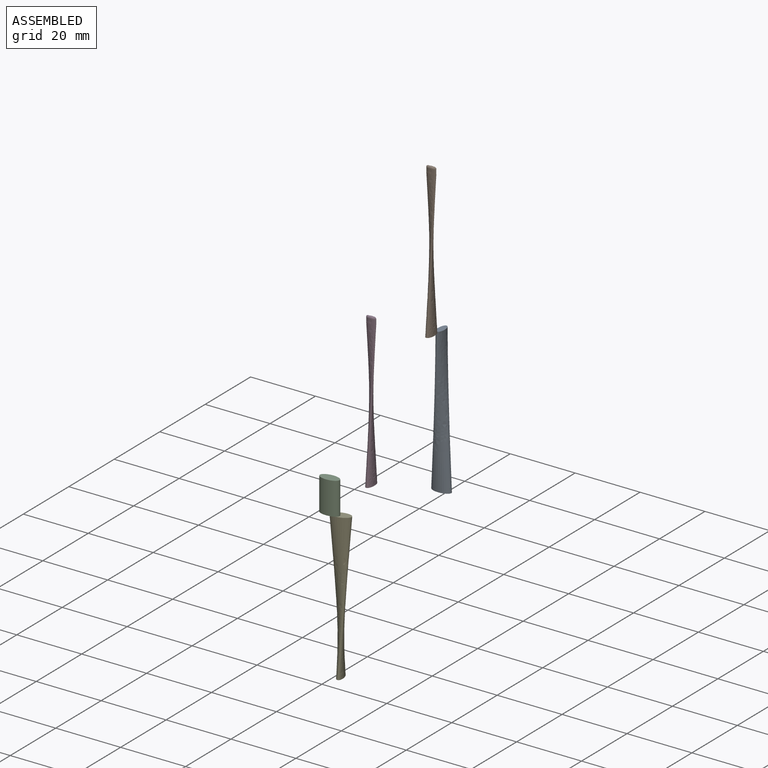
[diagram: assembled view]
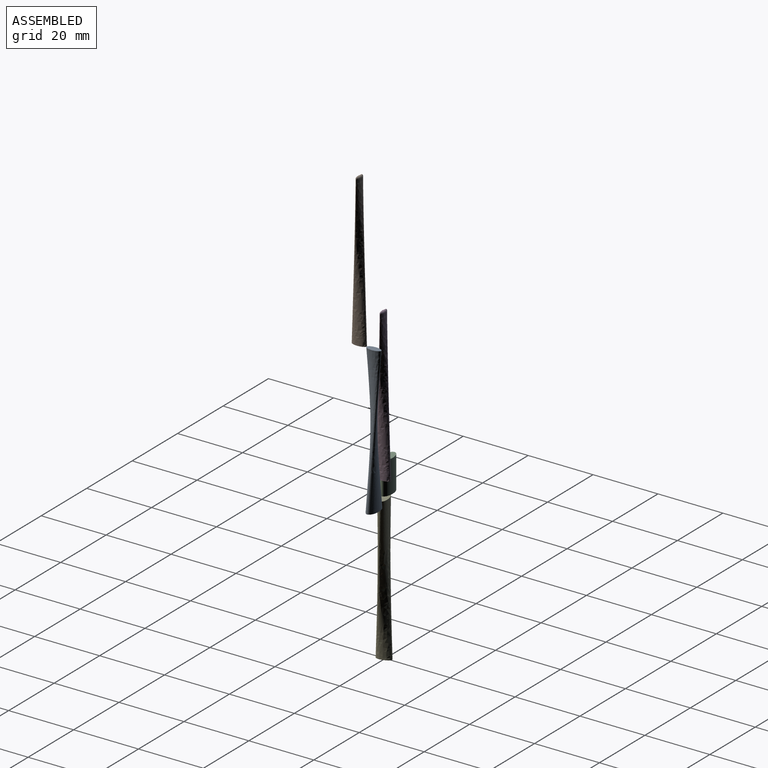
[diagram: assembled view, second angle]
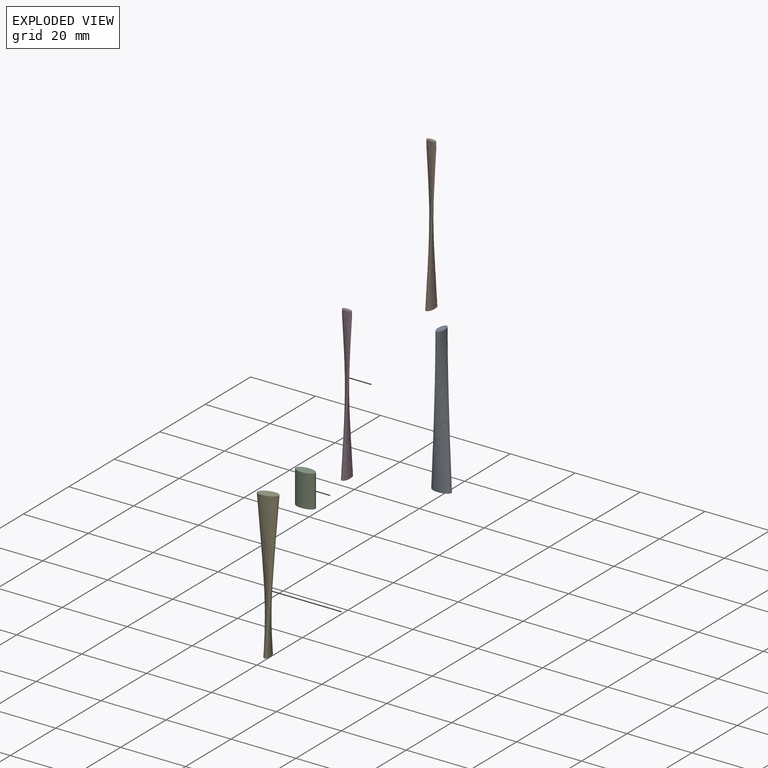
[diagram: exploded view]
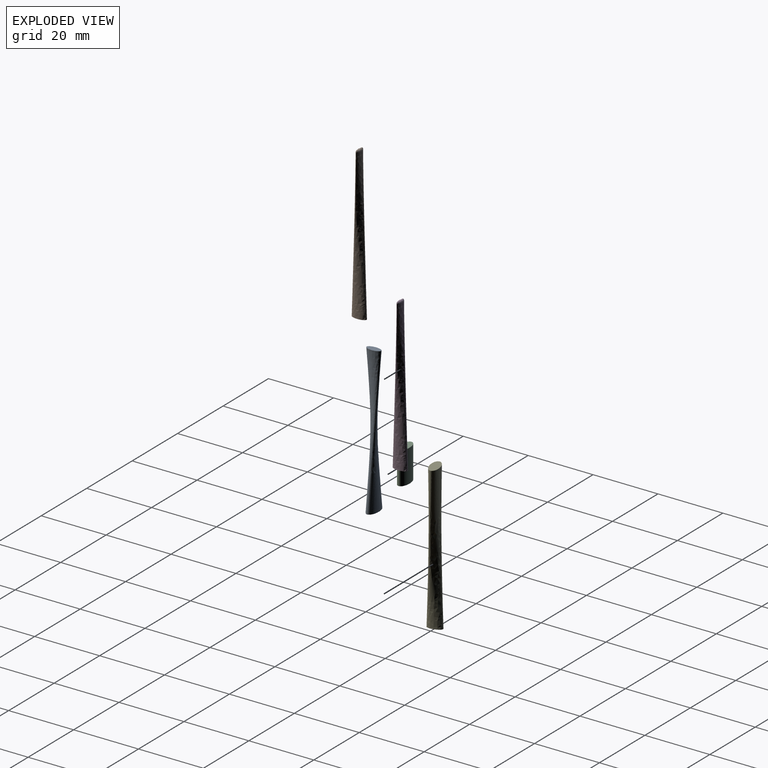
[diagram: exploded view, second angle]
ASSEMBLY  parts=5 mates=2
PART A: 3 faces, bbox 6x4.5x45 mm
  f0: plane 6x3mm, normal (0,0,-1), area 14.1mm2, adj f2
  f1: plane 4.5x2mm, normal (0,0,1), area 7.1mm2, adj f2
  f2: bspline ~45x6mm, area 461.4mm2, adj f0,f1
PART B: 7 faces, bbox 3x4.5x47 mm
  f0: plane 4.5x2mm, normal (0,0,-1), area 7.1mm2, adj f1
  f1: bspline ~45x4.5mm, area 318.7mm2, adj f0,f2
  f2: extruded ~3x1.5mm, area 10mm2, adj f1,f3,f4,f5,f6
  f3: bspline ~1.5x0.58mm, area 0.7mm2, adj f2,f4,f5
  f4: bspline ~2.44x0.66mm, area 0.9mm2, adj f2,f3,f6
  f5: bspline ~2.44x0.66mm, area 0.9mm2, adj f2,f3,f6
  f6: bspline ~1.5x0.58mm, area 0.5mm2, adj f2,f4,f5
PART C: 3 faces, bbox 5.9x3.2x10 mm
  f0: extruded ~10x5.87mm, area 145.3mm2, adj f1,f2
  f1: plane 5.89x3.21mm, normal (0,0,1), area 14.1mm2, adj f0
  f2: plane 5.89x3.21mm, normal (0,0,-1), area 14.1mm2, adj f0
PART D: same geometry as B
PART E: same geometry as A
PLACE A t=(6.37,15,-5.51)mm
PLACE B t=(6.37,10.5,-5.51)mm
PLACE C rot(axis=(0,0,1),15deg) t=(-3.16,22.02,-13.6)mm
PLACE D t=(-9.53,6.77,-50.1)mm
PLACE E rot(axis=(0.99,0.13,0),180deg) t=(-15.91,2.53,-13.6)mm
MATE fastened E.f0 <-> C.f2  axis (0,0,-1) through (-18.8,1.75,-13.6)mm
MATE fastened B.f0 <-> A.f1  axis (0,0,1) through (6.37,12.75,39.49)mm
